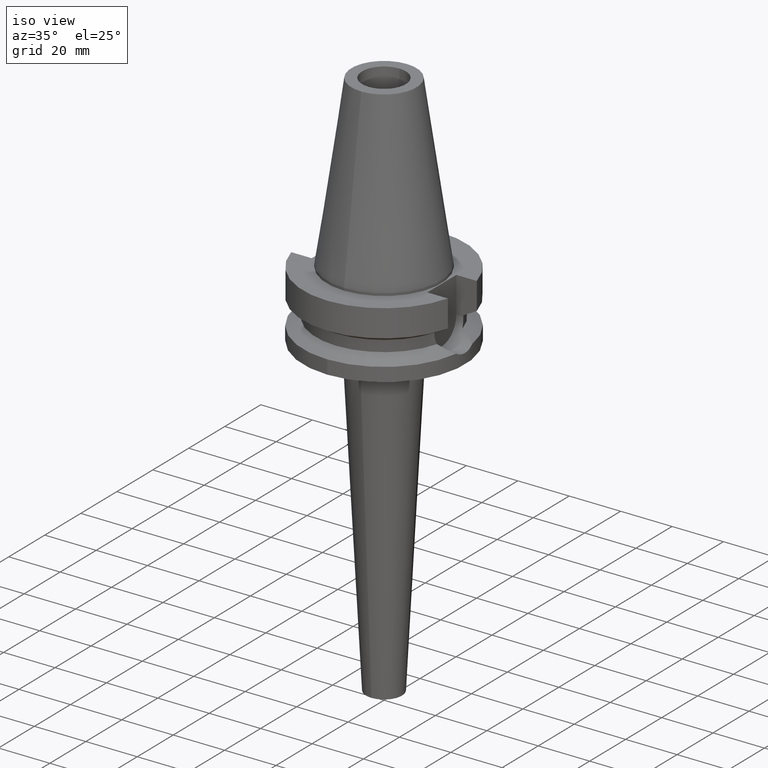
[diagram: clean part render]
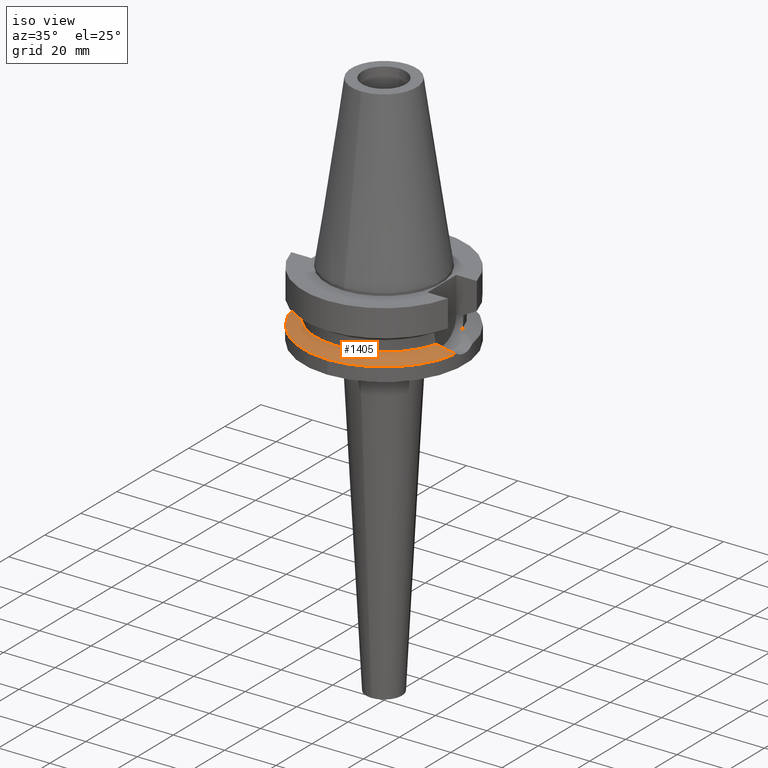
[diagram: same view with one face highlighted and labeled with its STEP entity id]
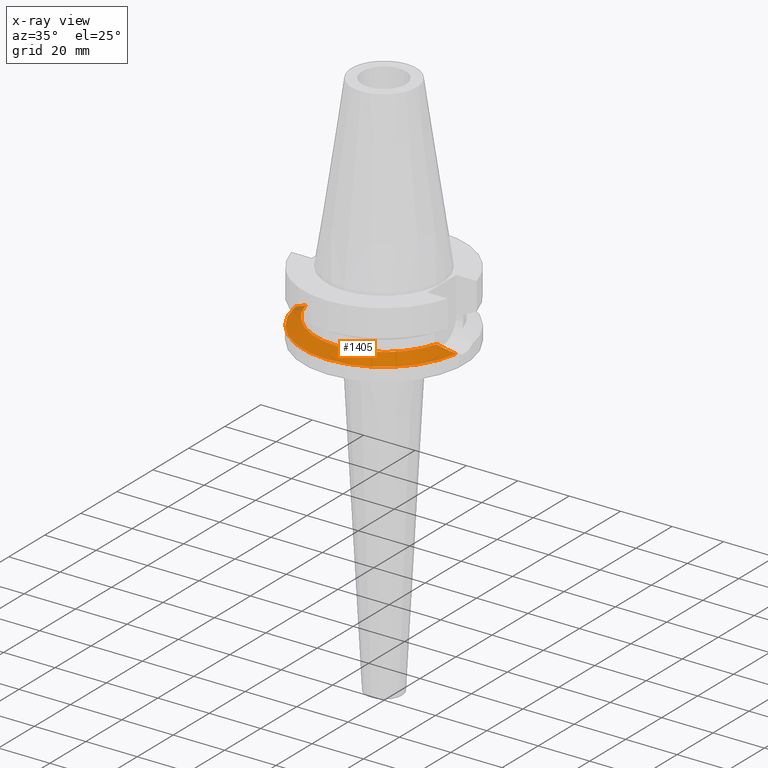
[diagram: x-ray of the same camera — body ghosted, the highlighted face saturated]
A machine part, iso view. The second image highlights one B-rep face of the part: STEP entity #1405.
The next image is the same camera in x-ray: the body ghosted, the highlighted face saturated — about 1% of this face is hidden behind the body in this view.
In plain terms, the highlighted conical surface has half-angle 60 deg.
Its self-contained STEP definition (entity closure, byte-faithful):
#458=CARTESIAN_POINT('',(-3.117899877609E1,-4.485536235554E0,
-2.163449434733E1));
#459=CARTESIAN_POINT('',(-3.064885916856E1,-4.887736533705E0,
-2.136460347488E1));
#460=CARTESIAN_POINT('',(-2.950578992837E1,-5.597523311112E0,
-2.078213674500E1));
#461=CARTESIAN_POINT('',(-2.770526559912E1,-6.417822246693E0,
-1.986248747885E1));
#462=CARTESIAN_POINT('',(-2.628256180244E1,-6.891477426449E0,
-1.913346968934E1));
#463=CARTESIAN_POINT('',(-2.553175183775E1,-7.097862220093E0,
-1.874774300139E1));
#468=CARTESIAN_POINT('',(0.E0,0.E0,-1.874774300139E1));
#469=DIRECTION('',(0.E0,0.E0,1.E0));
#470=DIRECTION('',(-9.634623335001E-1,-2.678438573620E-1,0.E0));
#471=AXIS2_PLACEMENT_3D('',#468,#469,#470);
#476=CARTESIAN_POINT('',(0.E0,0.E0,-1.874774300139E1));
#477=DIRECTION('',(0.E0,0.E0,1.E0));
#478=DIRECTION('',(0.E0,-1.E0,0.E0));
#479=AXIS2_PLACEMENT_3D('',#476,#477,#478);
#484=CARTESIAN_POINT('',(2.553175183775E1,-7.097862220093E0,-1.874774300139E1));
#485=CARTESIAN_POINT('',(2.631980732396E1,-6.881239270811E0,-1.915260448021E1));
#486=CARTESIAN_POINT('',(2.779067636775E1,-6.386584007005E0,-1.990619770135E1));
#487=CARTESIAN_POINT('',(2.960214055152E1,-5.544969082454E0,-2.083127196154E1));
#488=CARTESIAN_POINT('',(3.068675739268E1,-4.858984339335E0,-2.138389723189E1));
#489=CARTESIAN_POINT('',(3.117899877609E1,-4.485536235554E0,-2.163449434733E1));
#494=CARTESIAN_POINT('',(0.E0,0.E0,-2.163449434733E1));
#495=DIRECTION('',(0.E0,0.E0,-1.E0));
#496=DIRECTION('',(9.898094849553E-1,-1.423979757319E-1,0.E0));
#497=AXIS2_PLACEMENT_3D('',#494,#495,#496);
#502=CARTESIAN_POINT('',(0.E0,0.E0,-2.163449434733E1));
#503=DIRECTION('',(0.E0,0.E0,-1.E0));
#504=DIRECTION('',(0.E0,-1.E0,0.E0));
#505=AXIS2_PLACEMENT_3D('',#502,#503,#504);
#524=CARTESIAN_POINT('',(3.117899877609E1,-4.485536235554E0,-2.163449434733E1));
#970=VERTEX_POINT('',#524);
#973=CARTESIAN_POINT('',(0.E0,-3.15E1,-2.163449434733E1));
#974=VERTEX_POINT('',#973);
#975=VERTEX_POINT('',#484);
#986=VERTEX_POINT('',#458);
#987=VERTEX_POINT('',#463);
#988=CARTESIAN_POINT('',(0.E0,-2.65E1,-1.874774300139E1));
#989=VERTEX_POINT('',#988);
#1389=CARTESIAN_POINT('',(0.E0,0.E0,-2.019111867436E1));
#1390=DIRECTION('',(0.E0,0.E0,-1.E0));
#1391=DIRECTION('',(0.E0,-1.E0,0.E0));
#1392=AXIS2_PLACEMENT_3D('',#1389,#1390,#1391);
#1393=CONICAL_SURFACE('',#1392,2.9E1,6.E1);
#1394=ORIENTED_EDGE('',*,*,#1374,.T.);
#1395=ORIENTED_EDGE('',*,*,#1210,.T.);
#1396=ORIENTED_EDGE('',*,*,#1208,.T.);
#1398=ORIENTED_EDGE('',*,*,#1397,.T.);
#1400=ORIENTED_EDGE('',*,*,#1399,.T.);
#1402=ORIENTED_EDGE('',*,*,#1401,.T.);
#1403=EDGE_LOOP('',(#1394,#1395,#1396,#1398,#1400,#1402));
#1404=FACE_OUTER_BOUND('',#1403,.F.);
#464=B_SPLINE_CURVE_WITH_KNOTS('',3,(#458,#459,#460,#461,#462,#463),
.UNSPECIFIED.,.F.,.F.,(4,1,1,4),(0.E0,3.333333333333E-1,6.666666666667E-1,1.E0),
.UNSPECIFIED.);
#472=CIRCLE('',#471,2.65E1);
#480=CIRCLE('',#479,2.65E1);
#490=B_SPLINE_CURVE_WITH_KNOTS('',3,(#484,#485,#486,#487,#488,#489),
.UNSPECIFIED.,.F.,.F.,(4,1,1,4),(0.E0,3.333333333333E-1,6.666666666667E-1,1.E0),
.UNSPECIFIED.);
#498=CIRCLE('',#497,3.15E1);
#506=CIRCLE('',#505,3.15E1);
#1208=EDGE_CURVE('',#989,#975,#480,.T.);
#1210=EDGE_CURVE('',#987,#989,#472,.T.);
#1374=EDGE_CURVE('',#986,#987,#464,.T.);
#1397=EDGE_CURVE('',#975,#970,#490,.T.);
#1399=EDGE_CURVE('',#970,#974,#498,.T.);
#1401=EDGE_CURVE('',#974,#986,#506,.T.);
#1405=ADVANCED_FACE('',(#1404),#1393,.T.);